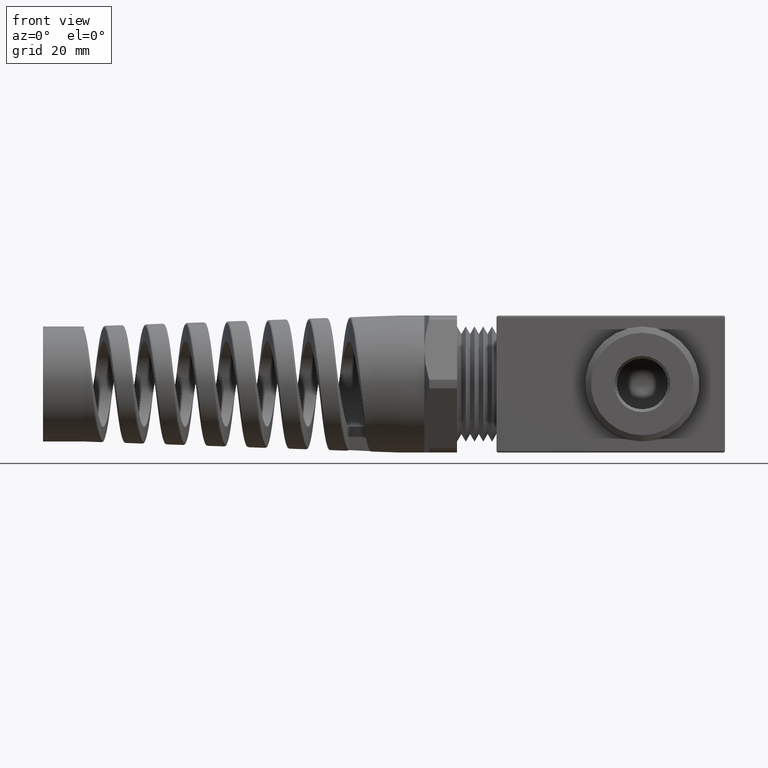
[diagram: clean part render]
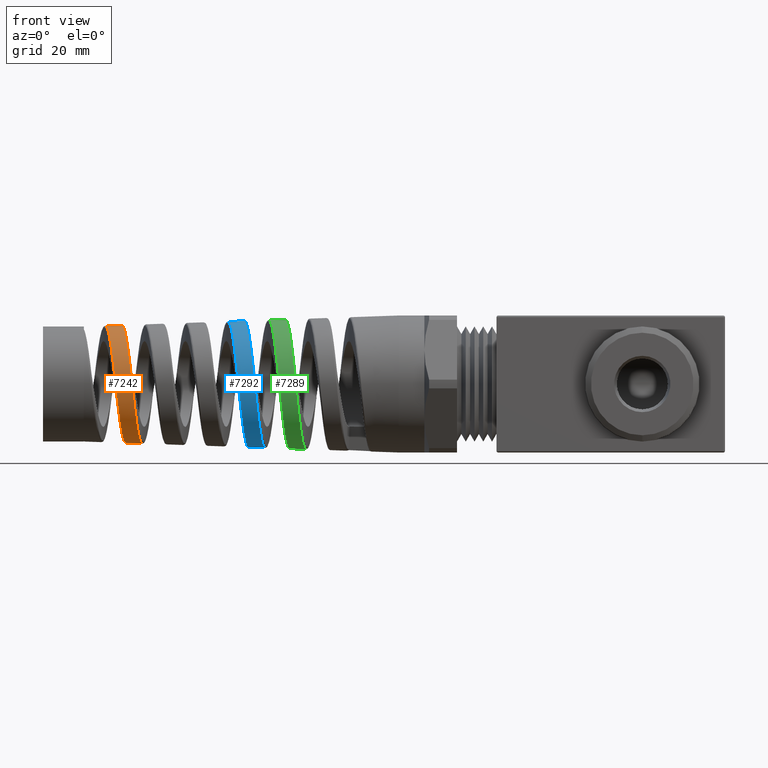
[diagram: same view with three faces highlighted in distinct colors, each labeled with its STEP entity id]
A machine part, front view with three faces highlighted in distinct colors.
Their STEP definitions:

[orange] entity #7242 — the highlighted conical surface has half-angle 2 deg.
#1359 = CARTESIAN_POINT ( 'NONE',  ( -2.430514158682816300, -4.644557431434576900E-013, -0.4085913324166747200 ) ) ;
#1664 = DIRECTION ( 'NONE',  ( 0.9993908270190959800, 0.0000000000000000000, -0.03489949670249403700 ) ) ;
#1665 = VECTOR ( 'NONE', #1664, 39.37007874015748100 ) ;
#1666 = CARTESIAN_POINT ( 'NONE',  ( -0.6720000000000001500, 0.0000000000000000000, -0.4699999999999998600 ) ) ;
#1667 = LINE ( 'NONE', #1666, #1665 ) ;
#6064 = CARTESIAN_POINT ( 'NONE',  ( -2.570915811315233100, -3.179248415142284500E-015, 0.4036883986688386500 ) ) ;
#6175 = CARTESIAN_POINT ( 'NONE',  ( -2.550322380640646100, -0.1801872109745417400, 0.3630237513487125100 ) ) ;
#6177 = CARTESIAN_POINT ( 'NONE',  ( -2.547413742908277700, -0.2035352142539029700, 0.3505795917643285700 ) ) ;
#6178 = CARTESIAN_POINT ( 'NONE',  ( -2.543012366372506200, -0.2366812698372448300, 0.3284969080969786200 ) ) ;
#6205 = DIRECTION ( 'NONE',  ( 0.0000000000000000000, 0.0000000000000000000, -1.000000000000000000 ) ) ;
#6206 = DIRECTION ( 'NONE',  ( 1.000000000000000000, 0.0000000000000000000, 0.0000000000000000000 ) ) ;
#6207 = CARTESIAN_POINT ( 'NONE',  ( -0.6720000000000001500, 0.0000000000000000000, 0.0000000000000000000 ) ) ;
#6208 = AXIS2_PLACEMENT_3D ( 'NONE', #6207, #6206, #6205 ) ;
#6209 = CONICAL_SURFACE ( 'NONE', #6208, 0.4699999999999998600, 0.03490658503987965200 ) ;
#6210 = FACE_OUTER_BOUND ( 'NONE', #7241, .T. ) ;
#6433 = CARTESIAN_POINT ( 'NONE',  ( -2.553630168962813100, -0.09131479268986740500, -0.3940676415320852300 ) ) ;
#6434 = CARTESIAN_POINT ( 'NONE',  ( -2.555095575855478100, -0.1041885840191225200, -0.3908047987045700800 ) ) ;
#6435 = CARTESIAN_POINT ( 'NONE',  ( -2.558002473059697700, -0.1293423923486833600, -0.3831085195077161300 ) ) ;
#6436 = CARTESIAN_POINT ( 'NONE',  ( -2.560897959142220500, -0.1540140281587494300, -0.3742201888238967900 ) ) ;
#6437 = CARTESIAN_POINT ( 'NONE',  ( -2.563798685872476800, -0.1777290875148218600, -0.3629752029142497300 ) ) ;
#6438 = CARTESIAN_POINT ( 'NONE',  ( -2.566715465491639800, -0.2009563116802702300, -0.3505323247531204100 ) ) ;
#6439 = CARTESIAN_POINT ( 'NONE',  ( -2.568190040261245900, -0.2123858290266794100, -0.3436687151675654200 ) ) ;
#6440 = CARTESIAN_POINT ( 'NONE',  ( -2.572580880245576300, -0.2453357017690604400, -0.3216002896141194100 ) ) ;
#6441 = CARTESIAN_POINT ( 'NONE',  ( -2.575469602542516300, -0.2655855368130044000, -0.3049416236418676100 ) ) ;
#6442 = CARTESIAN_POINT ( 'NONE',  ( -2.581282871862514500, -0.3027119362248537600, -0.2678185207313955600 ) ) ;
#6443 = CARTESIAN_POINT ( 'NONE',  ( -2.584235227686716200, -0.3197108427953407300, -0.2471136044207756800 ) ) ;
#6444 = CARTESIAN_POINT ( 'NONE',  ( -2.590062059259710100, -0.3489221280026593700, -0.2033948200000598700 ) ) ;
#6445 = CARTESIAN_POINT ( 'NONE',  ( -2.592955316130990200, -0.3612946345843366900, -0.1802917457773578200 ) ) ;
#6446 = CARTESIAN_POINT ( 'NONE',  ( -2.597345790247578300, -0.3764659855057668200, -0.1437609599942474600 ) ) ;
#6447 = CARTESIAN_POINT ( 'NONE',  ( -2.598824943060604700, -0.3809705807050424200, -0.1312029624607585200 ) ) ;
#6448 = CARTESIAN_POINT ( 'NONE',  ( -2.601755971276297000, -0.3886501072170210900, -0.1059314250629299500 ) ) ;
#6449 = CARTESIAN_POINT ( 'NONE',  ( -2.603212786343255900, -0.3918459941633135600, -0.09318536038715280500 ) ) ;
#6450 = CARTESIAN_POINT ( 'NONE',  ( -2.607577215053398700, -0.3995441214744403500, -0.05462569676285827100 ) ) ;
#6451 = CARTESIAN_POINT ( 'NONE',  ( -2.610478116083289300, -0.4021751077861183100, -0.02849365279849502100 ) ) ;
#6452 = CARTESIAN_POINT ( 'NONE',  ( -2.616379157324229400, -0.4022233184127659800, 0.02464435635406558500 ) ) ;
#6453 = CARTESIAN_POINT ( 'NONE',  ( -2.619287070868525600, -0.3996357977691669700, 0.05080931572176396200 ) ) ;
#6454 = CARTESIAN_POINT ( 'NONE',  ( -2.623660445699380200, -0.3920003232621153100, 0.08937623424069557300 ) ) ;
#6455 = CARTESIAN_POINT ( 'NONE',  ( -2.625120516252281300, -0.3888248853294024000, 0.1021228176437093800 ) ) ;
#6456 = CARTESIAN_POINT ( 'NONE',  ( -2.628057909613233300, -0.3811860399638478100, 0.1273917014873326100 ) ) ;
#6457 = CARTESIAN_POINT ( 'NONE',  ( -2.629540423146624000, -0.3766979440349729800, 0.1399582350137715500 ) ) ;
#6458 = CARTESIAN_POINT ( 'NONE',  ( -2.633943666669931200, -0.3615626809038248700, 0.1765236863286806500 ) ) ;
#6459 = CARTESIAN_POINT ( 'NONE',  ( -2.636845792623405700, -0.3492079320502491400, 0.1996381082187326500 ) ) ;
#6460 = CARTESIAN_POINT ( 'NONE',  ( -2.642696252191023100, -0.3200230276279901200, 0.2433574514799884400 ) ) ;
#6461 = CARTESIAN_POINT ( 'NONE',  ( -2.645665472546304900, -0.3030222094237932700, 0.2640652129158442300 ) ) ;
#6462 = CARTESIAN_POINT ( 'NONE',  ( -2.651518430578727600, -0.2658684806217358500, 0.3011692818440907500 ) ) ;
#6463 = CARTESIAN_POINT ( 'NONE',  ( -2.654430072137248200, -0.2455998574835707400, 0.3178013432860128900 ) ) ;
#6464 = CARTESIAN_POINT ( 'NONE',  ( -2.658852128152017400, -0.2126115044351324900, 0.3398021470236202200 ) ) ;
#6465 = CARTESIAN_POINT ( 'NONE',  ( -2.660337658658554500, -0.2011649710071019000, 0.3466397685487002700 ) ) ;
#6466 = CARTESIAN_POINT ( 'NONE',  ( -2.663277010188053000, -0.1779036929094154900, 0.3590188429808330900 ) ) ;
#6467 = CARTESIAN_POINT ( 'NONE',  ( -2.666201135524515200, -0.1541539910477421100, 0.3701885631821231200 ) ) ;
#6468 = CARTESIAN_POINT ( 'NONE',  ( -2.669123486788596500, -0.1294461499507137100, 0.3789774586531822800 ) ) ;
#6469 = CARTESIAN_POINT ( 'NONE',  ( -2.672059569763686000, -0.1042548262972510900, 0.3865605829577066200 ) ) ;
#6470 = CARTESIAN_POINT ( 'NONE',  ( -2.673541428326810200, -0.09135611326163235700, 0.3897605426730528200 ) ) ;
#6471 = CARTESIAN_POINT ( 'NONE',  ( -2.677980542331591900, -0.05235229602696302900, 0.3973926807049404400 ) ) ;
#6472 = CARTESIAN_POINT ( 'NONE',  ( -2.680900140616064900, -0.02623091163353539000, 0.3998476612576960000 ) ) ;
#6473 = CARTESIAN_POINT ( 'NONE',  ( -2.683833513271471000, 1.148867089074180500E-012, 0.3997452256272877600 ) ) ;
#6474 = B_SPLINE_CURVE_WITH_KNOTS ( 'NONE', 3,
 ( #6473, #6472, #6471, #6470, #6469, #6468, #6467, #6466, #6465, #6464, #6463, #6462, #6461, #6460, #6459, #6458, #6457, #6456, #6455, #6454, #6453, #6452, #6451, #6450, #6449, #6448, #6447, #6446, #6445, #6444, #6443, #6442, #6441, #6440, #6439, #6438, #6437, #6436, #6435, #6434, #6433, #6518, #6517, #6516 ),
 .UNSPECIFIED., .F., .F.,
 ( 4, 2, 2, 1, 2, 2, 2, 2, 2, 2, 2, 2, 2, 2, 2, 2, 2, 2, 2, 1, 2, 2, 4 ),
 ( 0.03372771576105604300, 0.03576203711556601900, 0.03677919779282099600, 0.03779635847007598000, 0.03881351914733096500, 0.03983067982458594900, 0.04186500117909591800, 0.04389932253360588600, 0.04593364388811586200, 0.04695080456537084600, 0.04796796524262583700, 0.05000228659713580600, 0.05203660795164577500, 0.05305376862890076600, 0.05407092930615575000, 0.05610525066066573300, 0.05813957201517570800, 0.06017389336968569100, 0.06119105404694067500, 0.06220821472419566000, 0.06322537540145065100, 0.06424253607870564200, 0.06627685743321561100 ),
 .UNSPECIFIED. ) ;
#6475 = CARTESIAN_POINT ( 'NONE',  ( -2.541532831267908400, -0.2474576054104047100, 0.3205270978571891400 ) ) ;
#6476 = CARTESIAN_POINT ( 'NONE',  ( -2.538575686064157300, -0.2681565191077241500, 0.3035598214138147100 ) ) ;
#6477 = CARTESIAN_POINT ( 'NONE',  ( -2.537109099177821600, -0.2780081341950768100, 0.2946282743627482400 ) ) ;
#6478 = CARTESIAN_POINT ( 'NONE',  ( -2.532722975974611500, -0.3061131808196913600, 0.2665324136784587000 ) ) ;
#6479 = CARTESIAN_POINT ( 'NONE',  ( -2.529816631277554500, -0.3229304170412677900, 0.2460791370551844400 ) ) ;
#6480 = CARTESIAN_POINT ( 'NONE',  ( -2.525398938252671600, -0.3451993597575702700, 0.2127581438894818600 ) ) ;
#6481 = CARTESIAN_POINT ( 'NONE',  ( -2.523919143295628900, -0.3521048976864388200, 0.2012233537470109500 ) ) ;
#6482 = CARTESIAN_POINT ( 'NONE',  ( -2.520989645038222100, -0.3646211075212367800, 0.1777725686972949100 ) ) ;
#6483 = CARTESIAN_POINT ( 'NONE',  ( -2.518074073473853600, -0.3759267383870673600, 0.1538202413897748500 ) ) ;
#6484 = CARTESIAN_POINT ( 'NONE',  ( -2.515157876024449700, -0.3848455380536912600, 0.1288824162082798900 ) ) ;
#6485 = CARTESIAN_POINT ( 'NONE',  ( -2.512227948789068400, -0.3925539630406828500, 0.1034464469450902400 ) ) ;
#6486 = CARTESIAN_POINT ( 'NONE',  ( -2.510748179075818600, -0.3958156169567484400, 0.09040821163031428900 ) ) ;
#6487 = CARTESIAN_POINT ( 'NONE',  ( -2.506332426340487400, -0.4036019569122805100, 0.05108687246974628200 ) ) ;
#6488 = CARTESIAN_POINT ( 'NONE',  ( -2.503432412070525800, -0.4061560767863591200, 0.02472916392387210900 ) ) ;
#6489 = CARTESIAN_POINT ( 'NONE',  ( -2.499061834463426600, -0.4061363087181927800, -0.01500758989449810900 ) ) ;
#6490 = CARTESIAN_POINT ( 'NONE',  ( -2.497601747846697400, -0.4054833414405621900, -0.02828680105041603600 ) ) ;
#6491 = CARTESIAN_POINT ( 'NONE',  ( -2.494660133674341000, -0.4028460445159972600, -0.05491284699720707500 ) ) ;
#6492 = CARTESIAN_POINT ( 'NONE',  ( -2.493187479035510600, -0.4008631879580584800, -0.06817787822273528600 ) ) ;
#6493 = CARTESIAN_POINT ( 'NONE',  ( -2.488807633618687300, -0.3930544433079774500, -0.1072430763142517700 ) ) ;
#6494 = CARTESIAN_POINT ( 'NONE',  ( -2.485911771086560600, -0.3853647090278199400, -0.1325574532536387100 ) ) ;
#6495 = CARTESIAN_POINT ( 'NONE',  ( -2.481524444911155800, -0.3700910452693080300, -0.1694223294765210000 ) ) ;
#6496 = CARTESIAN_POINT ( 'NONE',  ( -2.480047076756717800, -0.3643346650911733500, -0.1815894381582415800 ) ) ;
#6497 = CARTESIAN_POINT ( 'NONE',  ( -2.477115542621009400, -0.3517415776056513300, -0.2051234928230548400 ) ) ;
#6498 = CARTESIAN_POINT ( 'NONE',  ( -2.475659730870754900, -0.3449087614902560100, -0.2165044815332211600 ) ) ;
#6499 = CARTESIAN_POINT ( 'NONE',  ( -2.471301509800351700, -0.3228426260301421900, -0.2495162340738093800 ) ) ;
#6500 = CARTESIAN_POINT ( 'NONE',  ( -2.468408853876630900, -0.3060564525069937000, -0.2700265726905304300 ) ) ;
#6501 = CARTESIAN_POINT ( 'NONE',  ( -2.462533082352333000, -0.2681935550874801600, -0.3079355337735666400 ) ) ;
#6502 = CARTESIAN_POINT ( 'NONE',  ( -2.459626568213432400, -0.2476058633929421900, -0.3248206728906906600 ) ) ;
#6503 = CARTESIAN_POINT ( 'NONE',  ( -2.455273054373479100, -0.2146360145722235600, -0.3469113260438329600 ) ) ;
#6504 = CARTESIAN_POINT ( 'NONE',  ( -2.453820805641644000, -0.2032801601580871400, -0.3537468324050748700 ) ) ;
#6505 = CARTESIAN_POINT ( 'NONE',  ( -2.450902048101013500, -0.1798241773611951600, -0.3663414339377246100 ) ) ;
#6506 = CARTESIAN_POINT ( 'NONE',  ( -2.449428283895288300, -0.1676590397845680300, -0.3721233723699419200 ) ) ;
#6507 = CARTESIAN_POINT ( 'NONE',  ( -2.445046822882117200, -0.1307292681328098600, -0.3874963756280809200 ) ) ;
#6508 = CARTESIAN_POINT ( 'NONE',  ( -2.442164035011131300, -0.1054162231731739600, -0.3952278081930375400 ) ) ;
#6509 = CARTESIAN_POINT ( 'NONE',  ( -2.436362426714424200, -0.05344023864916264800, -0.4057427461146054200 ) ) ;
#6510 = CARTESIAN_POINT ( 'NONE',  ( -2.433417181641242900, -0.02652941790612861300, -0.4084899566210840600 ) ) ;
#6511 = CARTESIAN_POINT ( 'NONE',  ( -2.430514158682816300, -4.644557431434576900E-013, -0.4085913324166747200 ) ) ;
#6513 = B_SPLINE_CURVE_WITH_KNOTS ( 'NONE', 3,
 ( #6511, #6510, #6509, #6508, #6507, #6506, #6505, #6504, #6503, #6502, #6501, #6500, #6499, #6498, #6497, #6496, #6495, #6494, #6493, #6492, #6491, #6490, #6489, #6488, #6487, #6486, #6485, #6484, #6483, #6482, #6481, #6480, #6479, #6478, #6477, #6476, #6475, #6178, #6177, #6175, #12655, #12656, #12710, #12630, #12631, #12625, #12626 ),
 .UNSPECIFIED., .F., .F.,
 ( 4, 2, 2, 2, 2, 2, 2, 2, 2, 2, 2, 2, 2, 2, 1, 2, 2, 2, 2, 2, 2, 2, 2, 4 ),
 ( 0.3519305577512262300, 0.3539835214875263200, 0.3560364852238264200, 0.3570629670919764400, 0.3580894489601264600, 0.3601424126964265500, 0.3621953764327266500, 0.3632218583008766700, 0.3642483401690267400, 0.3663013039053268400, 0.3673277857734768600, 0.3683542676416268800, 0.3704072313779269700, 0.3714337132460770500, 0.3724601951142270700, 0.3734866769823771400, 0.3745131588505271600, 0.3765661225868272600, 0.3775926044549773300, 0.3786190863231273500, 0.3806720500594274500, 0.3816985319275775200, 0.3827250137957275400, 0.3847779775320276400 ),
 .UNSPECIFIED. ) ;
#6516 = CARTESIAN_POINT ( 'NONE',  ( -2.543457390768088600, -4.936352888661480000E-014, -0.4046472678433727400 ) ) ;
#6517 = CARTESIAN_POINT ( 'NONE',  ( -2.546353536090045100, -0.02622639217374914500, -0.4045461322201668900 ) ) ;
#6518 = CARTESIAN_POINT ( 'NONE',  ( -2.549238230246826800, -0.05233711440734226800, -0.4019197979248772500 ) ) ;
#7113 = VERTEX_POINT ( 'NONE', #1359 ) ;
#7173 = EDGE_CURVE ( 'NONE', #7277, #7113, #1667, .T. ) ;
#7229 = VERTEX_POINT ( 'NONE', #6064 ) ;
#7241 = EDGE_LOOP ( 'NONE', ( #7266, #7267, #7264, #7270 ) ) ;
#7242 = ADVANCED_FACE ( 'NONE', ( #6210 ), #6209, .T. ) ;
#7264 = ORIENTED_EDGE ( 'NONE', *, *, #7173, .T. ) ;
#7266 = ORIENTED_EDGE ( 'NONE', *, *, #7285, .F. ) ;
#7267 = ORIENTED_EDGE ( 'NONE', *, *, #7268, .T. ) ;
#7268 = EDGE_CURVE ( 'NONE', #7280, #7277, #6474, .T. ) ;
#7269 = EDGE_CURVE ( 'NONE', #7113, #7229, #6513, .T. ) ;
#7270 = ORIENTED_EDGE ( 'NONE', *, *, #7269, .T. ) ;
#7277 = VERTEX_POINT ( 'NONE', #8243 ) ;
#7280 = VERTEX_POINT ( 'NONE', #8236 ) ;
#7285 = EDGE_CURVE ( 'NONE', #7280, #7229, #8261, .T. ) ;
#8236 = CARTESIAN_POINT ( 'NONE',  ( -2.683833513271471000, 1.148867089074180500E-012, 0.3997452256272877600 ) ) ;
#8243 = CARTESIAN_POINT ( 'NONE',  ( -2.543457390768088600, -4.936352888661480000E-014, -0.4046472678433727400 ) ) ;
#8258 = DIRECTION ( 'NONE',  ( 0.9993908270190959800, 4.273955692856292900E-018, 0.03489949670249403700 ) ) ;
#8259 = VECTOR ( 'NONE', #8258, 39.37007874015748100 ) ;
#8260 = CARTESIAN_POINT ( 'NONE',  ( -0.6720000000000001500, 5.755839955992558400E-017, 0.4699999999999998600 ) ) ;
#8261 = LINE ( 'NONE', #8260, #8259 ) ;
#12625 = CARTESIAN_POINT ( 'NONE',  ( -2.567944963646700000, -0.02681664934277953900, 0.4037921429554665000 ) ) ;
#12626 = CARTESIAN_POINT ( 'NONE',  ( -2.570915811315233100, -3.179248415142284500E-015, 0.4036883986688386500 ) ) ;
#12630 = CARTESIAN_POINT ( 'NONE',  ( -2.560632930560489100, -0.09216631711686997000, 0.3936176576817424500 ) ) ;
#12631 = CARTESIAN_POINT ( 'NONE',  ( -2.565024182081027300, -0.05320628489264596400, 0.4012481135919907000 ) ) ;
#12655 = CARTESIAN_POINT ( 'NONE',  ( -2.554732773160818500, -0.1432834356294449600, 0.3782430733317483900 ) ) ;
#12656 = CARTESIAN_POINT ( 'NONE',  ( -2.556218928507924200, -0.1305956860764538000, 0.3827553089270600600 ) ) ;
#12710 = CARTESIAN_POINT ( 'NONE',  ( -2.559167521525929500, -0.1050481612911566400, 0.3904337526097111400 ) ) ;

[blue] entity #7292 — the highlighted conical surface has half-angle 2 deg.
#1278 = CARTESIAN_POINT ( 'NONE',  ( -1.841561912663937100, 6.841017039087616400E-014, 0.4291579980415429800 ) ) ;
#1283 = CARTESIAN_POINT ( 'NONE',  ( -1.588092709410913600, 5.378720768999652000E-013, -0.4380093376615970500 ) ) ;
#1292 = DIRECTION ( 'NONE',  ( 0.9993908270190959800, 0.0000000000000000000, -0.03489949670249403700 ) ) ;
#1294 = VECTOR ( 'NONE', #1292, 39.37007874015748100 ) ;
#1295 = CARTESIAN_POINT ( 'NONE',  ( -0.6720000000000001500, 0.0000000000000000000, -0.4699999999999998600 ) ) ;
#1296 = LINE ( 'NONE', #1295, #1294 ) ;
#1523 = CARTESIAN_POINT ( 'NONE',  ( -1.701181390279759200, 1.537446131535684400E-014, -0.4340601939048510700 ) ) ;
#1677 = DIRECTION ( 'NONE',  ( 0.9993908270190959800, 4.273955692856292900E-018, 0.03489949670249403700 ) ) ;
#1678 = VECTOR ( 'NONE', #1677, 39.37007874015748100 ) ;
#1679 = CARTESIAN_POINT ( 'NONE',  ( -0.6720000000000001500, 5.755839955992558400E-017, 0.4699999999999998600 ) ) ;
#1680 = LINE ( 'NONE', #1679, #1678 ) ;
#5876 = CARTESIAN_POINT ( 'NONE',  ( -1.728496292560490500, 6.489728726191558100E-016, 0.4331063364986161800 ) ) ;
#7096 = VERTEX_POINT ( 'NONE', #1283 ) ;
#7099 = VERTEX_POINT ( 'NONE', #1278 ) ;
#7107 = EDGE_CURVE ( 'NONE', #7166, #7096, #1296, .T. ) ;
#7166 = VERTEX_POINT ( 'NONE', #1523 ) ;
#7180 = EDGE_CURVE ( 'NONE', #7099, #7203, #1680, .T. ) ;
#7203 = VERTEX_POINT ( 'NONE', #5876 ) ;
#7286 = EDGE_CURVE ( 'NONE', #7099, #7166, #8256, .T. ) ;
#7287 = ORIENTED_EDGE ( 'NONE', *, *, #7107, .T. ) ;
#7288 = ORIENTED_EDGE ( 'NONE', *, *, #7291, .T. ) ;
#7291 = EDGE_CURVE ( 'NONE', #7096, #7203, #8372, .T. ) ;
#7292 = ADVANCED_FACE ( 'NONE', ( #8373 ), #8402, .T. ) ;
#7294 = EDGE_LOOP ( 'NONE', ( #7305, #7306, #7287, #7288 ) ) ;
#7305 = ORIENTED_EDGE ( 'NONE', *, *, #7180, .F. ) ;
#7306 = ORIENTED_EDGE ( 'NONE', *, *, #7286, .T. ) ;
#8251 = CARTESIAN_POINT ( 'NONE',  ( -1.834173036148997400, -0.07075670660705833700, 0.4237799771779977000 ) ) ;
#8252 = CARTESIAN_POINT ( 'NONE',  ( -1.835639224060607000, -0.05679385894752526900, 0.4258286824240877200 ) ) ;
#8253 = CARTESIAN_POINT ( 'NONE',  ( -1.838592442112284800, -0.02853695656774338200, 0.4285471996270462900 ) ) ;
#8254 = CARTESIAN_POINT ( 'NONE',  ( -1.840080810731172100, -0.01422985886500099400, 0.4292097192607331500 ) ) ;
#8255 = CARTESIAN_POINT ( 'NONE',  ( -1.841561912663937100, 6.841017039087616400E-014, 0.4291579980415429800 ) ) ;
#8256 = B_SPLINE_CURVE_WITH_KNOTS ( 'NONE', 3,
 ( #8255, #8254, #8253, #8252, #8251, #8334, #8333, #8332, #8331, #8330, #8329, #8328, #8327, #8326, #8325, #8324, #8323, #8322, #8321, #8320, #8319, #8318, #8317, #8316, #8315, #8314, #8313, #8312, #8311, #8310, #8309, #8308, #8307, #8306, #8305, #8304, #8303, #8302, #8301, #8300, #8299, #8298, #8297, #8296, #8295, #8294, #8293, #8292, #8291 ),
 .UNSPECIFIED., .F., .F.,
 ( 4, 2, 2, 2, 2, 1, 2, 2, 2, 2, 2, 2, 2, 2, 2, 2, 2, 2, 2, 2, 2, 2, 2, 2, 4 ),
 ( 0.2349370397999832000, 0.2360280126698850500, 0.2371189855397869100, 0.2393009312795906000, 0.2403919041494924400, 0.2414828770193943000, 0.2425738498892961400, 0.2436648227591979900, 0.2458467684990016700, 0.2480287142388053500, 0.2502106599786090300, 0.2513016328485109300, 0.2523926057184127700, 0.2545745514582164500, 0.2567564971980201300, 0.2578474700679219700, 0.2589384429378238100, 0.2611203886776274900, 0.2622113615475293300, 0.2633023344174311700, 0.2654842801572349100, 0.2665752530271367500, 0.2676662258970385900, 0.2687571987669404300, 0.2698481716368422700 ),
 .UNSPECIFIED. ) ;
#8291 = CARTESIAN_POINT ( 'NONE',  ( -1.701181390279759200, 1.537446131535684400E-014, -0.4340601939048510700 ) ) ;
#8292 = CARTESIAN_POINT ( 'NONE',  ( -1.702644112074749300, -0.01420979355368818200, -0.4340091145342182500 ) ) ;
#8293 = CARTESIAN_POINT ( 'NONE',  ( -1.704110953029998900, -0.02844996807434156700, -0.4332542253267711000 ) ) ;
#8294 = CARTESIAN_POINT ( 'NONE',  ( -1.707019070579340700, -0.05653010050608105200, -0.4303891755557874800 ) ) ;
#8295 = CARTESIAN_POINT ( 'NONE',  ( -1.708467330347169400, -0.07043814989449204100, -0.4282796158826096000 ) ) ;
#8296 = CARTESIAN_POINT ( 'NONE',  ( -1.711364733536663100, -0.09799214312385597100, -0.4227229919480712300 ) ) ;
#8297 = CARTESIAN_POINT ( 'NONE',  ( -1.712813379440780900, -0.1116381423913349900, -0.4192759426667188000 ) ) ;
#8298 = CARTESIAN_POINT ( 'NONE',  ( -1.715725316373403400, -0.1386624117519073800, -0.4110230441560467900 ) ) ;
#8299 = CARTESIAN_POINT ( 'NONE',  ( -1.717196818389192400, -0.1521131111328630500, -0.4061845896642241000 ) ) ;
#8300 = CARTESIAN_POINT ( 'NONE',  ( -1.721583276457384000, -0.1914027668722319000, -0.3898208893996108500 ) ) ;
#8301 = CARTESIAN_POINT ( 'NONE',  ( -1.724468527878075100, -0.2161856841232257000, -0.3765094446776247600 ) ) ;
#8302 = CARTESIAN_POINT ( 'NONE',  ( -1.728823773638256300, -0.2512842977106087300, -0.3530234542408863300 ) ) ;
#8303 = CARTESIAN_POINT ( 'NONE',  ( -1.730280035489447600, -0.2626354659091220100, -0.3446042196776064000 ) ) ;
#8304 = CARTESIAN_POINT ( 'NONE',  ( -1.733216268685799700, -0.2846176229745928700, -0.3265478075005546800 ) ) ;
#8305 = CARTESIAN_POINT ( 'NONE',  ( -1.734684305625505500, -0.2951549462667155100, -0.3169802254648714200 ) ) ;
#8306 = CARTESIAN_POINT ( 'NONE',  ( -1.739055353414006300, -0.3250594253606847200, -0.2870434927512008900 ) ) ;
#8307 = CARTESIAN_POINT ( 'NONE',  ( -1.741945503069912200, -0.3428999138496040000, -0.2653182116610758300 ) ) ;
#8308 = CARTESIAN_POINT ( 'NONE',  ( -1.746327082708033100, -0.3664864337672291100, -0.2300646039331091000 ) ) ;
#8309 = CARTESIAN_POINT ( 'NONE',  ( -1.747803319054173500, -0.3738490343762106400, -0.2177964925222865800 ) ) ;
#8310 = CARTESIAN_POINT ( 'NONE',  ( -1.750731568438960200, -0.3872179999844266300, -0.1928009476675596500 ) ) ;
#8311 = CARTESIAN_POINT ( 'NONE',  ( -1.752186468215523900, -0.3932469813530633500, -0.1800547669940109900 ) ) ;
#8312 = CARTESIAN_POINT ( 'NONE',  ( -1.756545496468120600, -0.4094118379373482600, -0.1410902057726827800 ) ) ;
#8313 = CARTESIAN_POINT ( 'NONE',  ( -1.759443732269351500, -0.4176441201044491800, -0.1141527611773698900 ) ) ;
#8314 = CARTESIAN_POINT ( 'NONE',  ( -1.765339803648906700, -0.4288143838713694400, -0.05829087737140163000 ) ) ;
#8315 = CARTESIAN_POINT ( 'NONE',  ( -1.768251265675089100, -0.4315784043889401800, -0.03018229527921595700 ) ) ;
#8316 = CARTESIAN_POINT ( 'NONE',  ( -1.772617237797215600, -0.4316279967913190800, 0.01198915971067074700 ) ) ;
#8317 = CARTESIAN_POINT ( 'NONE',  ( -1.774074185992559700, -0.4309594733917491700, 0.02606123887140257900 ) ) ;
#8318 = CARTESIAN_POINT ( 'NONE',  ( -1.777004963103246100, -0.4282237295716515000, 0.05423446360485376100 ) ) ;
#8319 = CARTESIAN_POINT ( 'NONE',  ( -1.778485309218612400, -0.4261389120112483700, 0.06839652613781092800 ) ) ;
#8320 = CARTESIAN_POINT ( 'NONE',  ( -1.782883244161572300, -0.4178857085589426400, 0.1100580651535573600 ) ) ;
#8321 = CARTESIAN_POINT ( 'NONE',  ( -1.785781620847448400, -0.4097391555462271400, 0.1369691386260972800 ) ) ;
#8322 = CARTESIAN_POINT ( 'NONE',  ( -1.791626738169264500, -0.3882283739201419200, 0.1890753835268072200 ) ) ;
#8323 = CARTESIAN_POINT ( 'NONE',  ( -1.794596536370698400, -0.3746977995052160300, 0.2144343825307675800 ) ) ;
#8324 = CARTESIAN_POINT ( 'NONE',  ( -1.800443758841251000, -0.3434119407039841800, 0.2612908286769734500 ) ) ;
#8325 = CARTESIAN_POINT ( 'NONE',  ( -1.803347702722432100, -0.3255930954241457200, 0.2830480151973149800 ) ) ;
#8326 = CARTESIAN_POINT ( 'NONE',  ( -1.807759860732106800, -0.2955441974868410200, 0.3131223055031209200 ) ) ;
#8327 = CARTESIAN_POINT ( 'NONE',  ( -1.809243155391052800, -0.2849409437219953500, 0.3227307476018538800 ) ) ;
#8328 = CARTESIAN_POINT ( 'NONE',  ( -1.812178817544600500, -0.2630736205449628100, 0.3406619077310827900 ) ) ;
#8329 = CARTESIAN_POINT ( 'NONE',  ( -1.815099381809438300, -0.2404425827538976800, 0.3574208175820389200 ) ) ;
#8330 = CARTESIAN_POINT ( 'NONE',  ( -1.818019088529181100, -0.2163131579766342000, 0.3718742939658042900 ) ) ;
#8331 = CARTESIAN_POINT ( 'NONE',  ( -1.820952340603758900, -0.1914274320555456900, 0.3851614396907964100 ) ) ;
#8332 = CARTESIAN_POINT ( 'NONE',  ( -1.822431673270428900, -0.1785534789218999900, 0.3912432745792096500 ) ) ;
#8333 = CARTESIAN_POINT ( 'NONE',  ( -1.826869993670167600, -0.1391188729067899300, 0.4075193605569084100 ) ) ;
#8334 = CARTESIAN_POINT ( 'NONE',  ( -1.829783408204705300, -0.1121596378978960400, 0.4156217606776908000 ) ) ;
#8335 = CARTESIAN_POINT ( 'NONE',  ( -1.703502866350349300, -0.2303624107153612900, 0.3680683294387387400 ) ) ;
#8336 = CARTESIAN_POINT ( 'NONE',  ( -1.699100119797324100, -0.2659384595453337900, 0.3443270267778453200 ) ) ;
#8337 = CARTESIAN_POINT ( 'NONE',  ( -1.696195509476245300, -0.2878838382687924400, 0.3263359218202439000 ) ) ;
#8338 = CARTESIAN_POINT ( 'NONE',  ( -1.691796985386851500, -0.3181398987928470400, 0.2961132521828376800 ) ) ;
#8339 = CARTESIAN_POINT ( 'NONE',  ( -1.690315829708939100, -0.3278267162539137400, 0.2854344364263184900 ) ) ;
#8340 = CARTESIAN_POINT ( 'NONE',  ( -1.687367242087446200, -0.3460050863788525800, 0.2632738688811646100 ) ) ;
#8341 = CARTESIAN_POINT ( 'NONE',  ( -1.685902988699076800, -0.3544838044892056900, 0.2518225895377605400 ) ) ;
#8342 = CARTESIAN_POINT ( 'NONE',  ( -1.681519356481632900, -0.3781372831006479300, 0.2163878157318064300 ) ) ;
#8343 = CARTESIAN_POINT ( 'NONE',  ( -1.678610912184730600, -0.3915464063140199300, 0.1913334880427575700 ) ) ;
#8344 = CARTESIAN_POINT ( 'NONE',  ( -1.674187151363305300, -0.4080044045249186500, 0.1515449922940504700 ) ) ;
#8345 = CARTESIAN_POINT ( 'NONE',  ( -1.672711971565763700, -0.4128334031426187900, 0.1379989758745423200 ) ) ;
#8346 = CARTESIAN_POINT ( 'NONE',  ( -1.669787576939518700, -0.4210727902529471900, 0.1107326021136305600 ) ) ;
#8347 = CARTESIAN_POINT ( 'NONE',  ( -1.666876532697572300, -0.4279415194525773000, 0.08317866981792813900 ) ) ;
#8348 = CARTESIAN_POINT ( 'NONE',  ( -1.663963255881072200, -0.4320999482530167900, 0.05505914403339316100 ) ) ;
#8349 = CARTESIAN_POINT ( 'NONE',  ( -1.661034253585972300, -0.4348799101349208300, 0.02665349294479566300 ) ) ;
#8350 = CARTESIAN_POINT ( 'NONE',  ( -1.659553792975186700, -0.4355772931154848200, 0.01222852141637867200 ) ) ;
#8351 = CARTESIAN_POINT ( 'NONE',  ( -1.655146842097790800, -0.4355259634450351900, -0.03070332094575632300 ) ) ;
#8352 = CARTESIAN_POINT ( 'NONE',  ( -1.652245188139831200, -0.4326979440143100000, -0.05895456623279007200 ) ) ;
#8353 = CARTESIAN_POINT ( 'NONE',  ( -1.646414419844867400, -0.4215679543563745100, -0.1147218859813854700 ) ) ;
#8354 = CARTESIAN_POINT ( 'NONE',  ( -1.643455324272657300, -0.4131242745050203200, -0.1424805454144093800 ) ) ;
#8355 = CARTESIAN_POINT ( 'NONE',  ( -1.637626030724759400, -0.3912873582252898200, -0.1950491091800147500 ) ) ;
#8356 = CARTESIAN_POINT ( 'NONE',  ( -1.634734668394298900, -0.3779022835099483100, -0.2200775413605868000 ) ) ;
#8357 = CARTESIAN_POINT ( 'NONE',  ( -1.630346231522676200, -0.3540891330400082700, -0.2557082727628742800 ) ) ;
#8358 = CARTESIAN_POINT ( 'NONE',  ( -1.628868030536071700, -0.3454780789758350500, -0.2673126776199683000 ) ) ;
#8359 = CARTESIAN_POINT ( 'NONE',  ( -1.625939893337805100, -0.3273312738065673500, -0.2894040471077576900 ) ) ;
#8360 = CARTESIAN_POINT ( 'NONE',  ( -1.624484504618150200, -0.3177711134095881900, -0.2999390996694166800 ) ) ;
#8361 = CARTESIAN_POINT ( 'NONE',  ( -1.620125769997356400, -0.2876631510985567200, -0.3300440720304460600 ) ) ;
#8362 = CARTESIAN_POINT ( 'NONE',  ( -1.617229733442241400, -0.2656924294786426900, -0.3481344438123302700 ) ) ;
#8363 = CARTESIAN_POINT ( 'NONE',  ( -1.611347329421691600, -0.2178566098036646700, -0.3801422495086334000 ) ) ;
#8364 = CARTESIAN_POINT ( 'NONE',  ( -1.608456165064677600, -0.1927664804094773300, -0.3935436545087500600 ) ) ;
#8365 = CARTESIAN_POINT ( 'NONE',  ( -1.604106518908434000, -0.1534527413216463800, -0.4098979285966440300 ) ) ;
#8366 = CARTESIAN_POINT ( 'NONE',  ( -1.602654613768318000, -0.1400663531656627900, -0.4147201708230941500 ) ) ;
#8367 = CARTESIAN_POINT ( 'NONE',  ( -1.599732682423807600, -0.1127189375021175500, -0.4230781685035462900 ) ) ;
#8368 = CARTESIAN_POINT ( 'NONE',  ( -1.598257785439644700, -0.09870960820019275600, -0.4266166189982991700 ) ) ;
#8369 = CARTESIAN_POINT ( 'NONE',  ( -1.593879676840698000, -0.05670243892082552800, -0.4350585648589707100 ) ) ;
#8370 = CARTESIAN_POINT ( 'NONE',  ( -1.590996278311225900, -0.02846395047653309900, -0.4379079428013606900 ) ) ;
#8371 = CARTESIAN_POINT ( 'NONE',  ( -1.588092709410913600, 5.378720768999652000E-013, -0.4380093376615970500 ) ) ;
#8372 = B_SPLINE_CURVE_WITH_KNOTS ( 'NONE', 3,
 ( #8371, #8370, #8369, #8368, #8367, #8366, #8365, #8364, #8363, #8362, #8361, #8360, #8359, #8358, #8357, #8356, #8355, #8354, #8353, #8352, #8351, #8350, #8349, #8348, #8347, #8346, #8345, #8344, #8343, #8342, #8341, #8340, #8339, #8338, #8337, #8336, #8335, #8413, #8412, #8411, #8410, #8409, #8408, #8407, #8406, #8405, #8404 ),
 .UNSPECIFIED., .F., .F.,
 ( 4, 2, 2, 2, 2, 2, 2, 2, 2, 2, 2, 2, 1, 2, 2, 2, 2, 2, 2, 2, 2, 2, 2, 4 ),
 ( 0.1465185604270058700, 0.1487203717819474100, 0.1498212774594181700, 0.1509221831368889300, 0.1531239944918304800, 0.1553258058467720000, 0.1564267115242427800, 0.1575276172017135400, 0.1597294285566550600, 0.1619312399115966100, 0.1641330512665381300, 0.1652339569440088900, 0.1663348626214796500, 0.1674357682989504000, 0.1685366739764211900, 0.1707384853313627100, 0.1718393910088335000, 0.1729402966863042600, 0.1751421080412457800, 0.1762430137187165300, 0.1773439193961872900, 0.1795457307511288400, 0.1806466364285996000, 0.1817475421060703600 ),
 .UNSPECIFIED. ) ;
#8373 = FACE_OUTER_BOUND ( 'NONE', #7294, .T. ) ;
#8398 = DIRECTION ( 'NONE',  ( 0.0000000000000000000, 0.0000000000000000000, -1.000000000000000000 ) ) ;
#8399 = DIRECTION ( 'NONE',  ( 1.000000000000000000, 0.0000000000000000000, 0.0000000000000000000 ) ) ;
#8400 = CARTESIAN_POINT ( 'NONE',  ( -0.6720000000000001500, 0.0000000000000000000, 0.0000000000000000000 ) ) ;
#8401 = AXIS2_PLACEMENT_3D ( 'NONE', #8400, #8399, #8398 ) ;
#8402 = CONICAL_SURFACE ( 'NONE', #8401, 0.4699999999999998600, 0.03490658503987965200 ) ;
#8404 = CARTESIAN_POINT ( 'NONE',  ( -1.728496292560490500, 6.489728726191558100E-016, 0.4331063364986161800 ) ) ;
#8405 = CARTESIAN_POINT ( 'NONE',  ( -1.727032796396459100, -0.01418905300704679400, 0.4331574429108124800 ) ) ;
#8406 = CARTESIAN_POINT ( 'NONE',  ( -1.725570734797873500, -0.02837149844345053200, 0.4325128959702172500 ) ) ;
#8407 = CARTESIAN_POINT ( 'NONE',  ( -1.722634789190395500, -0.05672151454102395500, 0.4298184002838754100 ) ) ;
#8408 = CARTESIAN_POINT ( 'NONE',  ( -1.721155154733495300, -0.07094397495666351900, 0.4277573018433950000 ) ) ;
#8409 = CARTESIAN_POINT ( 'NONE',  ( -1.716714569260078500, -0.1132091835103063200, 0.4194590072834570900 ) ) ;
#8410 = CARTESIAN_POINT ( 'NONE',  ( -1.713797684887800300, -0.1404136998488989300, 0.4112378394929524500 ) ) ;
#8411 = CARTESIAN_POINT ( 'NONE',  ( -1.709404778173667600, -0.1798023246450979300, 0.3950086206959182400 ) ) ;
#8412 = CARTESIAN_POINT ( 'NONE',  ( -1.707937996720111200, -0.1926938316068336200, 0.3889445531282524900 ) ) ;
#8413 = CARTESIAN_POINT ( 'NONE',  ( -1.704986217113567700, -0.2179867062526144600, 0.3754730622850346900 ) ) ;

[green] entity #7289 — the highlighted conical surface has half-angle 2 deg.
#1276 = CARTESIAN_POINT ( 'NONE',  ( -1.420421649733054400, -2.636518376587341800E-014, -0.4438645400870435100 ) ) ;
#1460 = DIRECTION ( 'NONE',  ( 0.9993908270190959800, 4.273955692856292900E-018, 0.03489949670249403700 ) ) ;
#1461 = VECTOR ( 'NONE', #1460, 39.37007874015748100 ) ;
#1462 = CARTESIAN_POINT ( 'NONE',  ( -0.6720000000000001500, 5.755839955992558400E-017, 0.4699999999999998600 ) ) ;
#1463 = LINE ( 'NONE', #1462, #1461 ) ;
#1468 = DIRECTION ( 'NONE',  ( 0.9993908270190959800, 0.0000000000000000000, -0.03489949670249403700 ) ) ;
#1469 = VECTOR ( 'NONE', #1468, 39.37007874015748100 ) ;
#1470 = CARTESIAN_POINT ( 'NONE',  ( -0.6720000000000001500, 0.0000000000000000000, -0.4699999999999998600 ) ) ;
#1471 = LINE ( 'NONE', #1470, #1469 ) ;
#1534 = CARTESIAN_POINT ( 'NONE',  ( -1.560801279104852900, 6.419263063356603100E-013, 0.4389623754084148700 ) ) ;
#1543 = CARTESIAN_POINT ( 'NONE',  ( -1.307287354128781500, -4.690012490979943100E-013, -0.4478152767454508000 ) ) ;
#1658 = CARTESIAN_POINT ( 'NONE',  ( -1.447689744863806900, 3.730802169768455900E-016, 0.4429123172225035700 ) ) ;
#7104 = VERTEX_POINT ( 'NONE', #1276 ) ;
#7123 = EDGE_CURVE ( 'NONE', #7104, #7171, #1471, .T. ) ;
#7126 = EDGE_CURVE ( 'NONE', #7161, #7177, #1463, .T. ) ;
#7161 = VERTEX_POINT ( 'NONE', #1534 ) ;
#7171 = VERTEX_POINT ( 'NONE', #1543 ) ;
#7177 = VERTEX_POINT ( 'NONE', #1658 ) ;
#7289 = ADVANCED_FACE ( 'NONE', ( #8257 ), #8290, .T. ) ;
#7290 = EDGE_LOOP ( 'NONE', ( #7293, #7303, #7312, #7295 ) ) ;
#7293 = ORIENTED_EDGE ( 'NONE', *, *, #7126, .F. ) ;
#7295 = ORIENTED_EDGE ( 'NONE', *, *, #7313, .T. ) ;
#7303 = ORIENTED_EDGE ( 'NONE', *, *, #7304, .T. ) ;
#7304 = EDGE_CURVE ( 'NONE', #7161, #7104, #8394, .T. ) ;
#7312 = ORIENTED_EDGE ( 'NONE', *, *, #7123, .T. ) ;
#7313 = EDGE_CURVE ( 'NONE', #7171, #7177, #8543, .T. ) ;
#8257 = FACE_OUTER_BOUND ( 'NONE', #7290, .T. ) ;
#8288 = CARTESIAN_POINT ( 'NONE',  ( -0.6720000000000001500, 0.0000000000000000000, 0.0000000000000000000 ) ) ;
#8289 = AXIS2_PLACEMENT_3D ( 'NONE', #8288, #8375, #8374 ) ;
#8290 = CONICAL_SURFACE ( 'NONE', #8289, 0.4699999999999998600, 0.03490658503987965200 ) ;
#8374 = DIRECTION ( 'NONE',  ( 0.0000000000000000000, 0.0000000000000000000, -1.000000000000000000 ) ) ;
#8375 = DIRECTION ( 'NONE',  ( 1.000000000000000000, 0.0000000000000000000, 0.0000000000000000000 ) ) ;
#8376 = CARTESIAN_POINT ( 'NONE',  ( -1.513832499012241400, -0.3832529979195175000, 0.2192737946336274200 ) ) ;
#8377 = CARTESIAN_POINT ( 'NONE',  ( -1.518224119711354600, -0.3592118581903178700, 0.2552854305984773000 ) ) ;
#8378 = CARTESIAN_POINT ( 'NONE',  ( -1.519700352754317400, -0.3505362747264161300, 0.2669944112780786000 ) ) ;
#8379 = CARTESIAN_POINT ( 'NONE',  ( -1.522651290517627000, -0.3320735728915950600, 0.2894789858839778000 ) ) ;
#8380 = CARTESIAN_POINT ( 'NONE',  ( -1.524115784753259600, -0.3223560887987243500, 0.3001802983463102100 ) ) ;
#8381 = CARTESIAN_POINT ( 'NONE',  ( -1.528499113484616600, -0.2917899390373520100, 0.3307077294922140500 ) ) ;
#8382 = CARTESIAN_POINT ( 'NONE',  ( -1.531407757192924100, -0.2695409233419302500, 0.3489722468366417400 ) ) ;
#8383 = CARTESIAN_POINT ( 'NONE',  ( -1.535836242926494500, -0.2332916035182811300, 0.3731488607530205600 ) ) ;
#8384 = CARTESIAN_POINT ( 'NONE',  ( -1.537320150192313900, -0.2207471459771752400, 0.3806414564213501700 ) ) ;
#8385 = CARTESIAN_POINT ( 'NONE',  ( -1.540257800119139800, -0.1952421446095321000, 0.3942175873213718500 ) ) ;
#8386 = CARTESIAN_POINT ( 'NONE',  ( -1.541719093574048800, -0.1822165203103782400, 0.4003464969302190600 ) ) ;
#8387 = CARTESIAN_POINT ( 'NONE',  ( -1.544642364853163100, -0.1556279009512166500, 0.4113032793532450100 ) ) ;
#8388 = CARTESIAN_POINT ( 'NONE',  ( -1.546104124796739300, -0.1420648907172845600, 0.4161311737264498100 ) ) ;
#8389 = CARTESIAN_POINT ( 'NONE',  ( -1.549041807855464200, -0.1143947069719615400, 0.4244658764113228800 ) ) ;
#8390 = CARTESIAN_POINT ( 'NONE',  ( -1.550525915992915000, -0.1002079318322416200, 0.4279863633854866800 ) ) ;
#8391 = CARTESIAN_POINT ( 'NONE',  ( -1.554954951890536800, -0.05745874500599688900, 0.4363589127561068900 ) ) ;
#8392 = CARTESIAN_POINT ( 'NONE',  ( -1.557868444199303100, -0.02880281915809897200, 0.4390647922601509900 ) ) ;
#8393 = CARTESIAN_POINT ( 'NONE',  ( -1.560801279104852900, 6.419263063356603100E-013, 0.4389623754084148700 ) ) ;
#8394 = B_SPLINE_CURVE_WITH_KNOTS ( 'NONE', 3,
 ( #8393, #8392, #8391, #8390, #8389, #8388, #8387, #8386, #8385, #8384, #8383, #8382, #8381, #8380, #8379, #8378, #8377, #8376, #8451, #8450, #8449, #8448, #8447, #8446, #8445, #8444, #8443, #8442, #8441, #8440, #8439, #8438, #8437, #8436, #8435, #8434, #8433, #8432, #8431, #8430, #8429, #8428, #8427, #8426, #8425, #8424, #8423 ),
 .UNSPECIFIED., .F., .F.,
 ( 4, 2, 2, 2, 2, 2, 2, 2, 2, 2, 2, 2, 2, 2, 2, 2, 2, 2, 2, 2, 1, 2, 2, 4 ),
 ( 0.3051634486052209300, 0.3073957625895352700, 0.3085119195816924400, 0.3096280765738496100, 0.3107442335660067800, 0.3118603905581639500, 0.3140927045424783400, 0.3152088615346355100, 0.3163250185267926800, 0.3185573325111070200, 0.3196734895032641900, 0.3207896464954213500, 0.3230219604797356900, 0.3252542744640500300, 0.3263704314562072000, 0.3274865884483643700, 0.3297189024326787100, 0.3319512164169929900, 0.3341835304013073300, 0.3352996873934645000, 0.3364158443856216700, 0.3375320013777788300, 0.3386481583699360000, 0.3408804723542503400 ),
 .UNSPECIFIED. ) ;
#8423 = CARTESIAN_POINT ( 'NONE',  ( -1.420421649733054400, -2.636518376587341800E-014, -0.4438645400870435100 ) ) ;
#8424 = CARTESIAN_POINT ( 'NONE',  ( -1.423320312718834500, -0.02877628320771817600, -0.4437633165450813300 ) ) ;
#8425 = CARTESIAN_POINT ( 'NONE',  ( -1.426209420046541200, -0.05744325550961857500, -0.4408907155908081700 ) ) ;
#8426 = CARTESIAN_POINT ( 'NONE',  ( -1.430609715381088800, -0.1002654590738152500, -0.4322717464784232600 ) ) ;
#8427 = CARTESIAN_POINT ( 'NONE',  ( -1.432073174473177400, -0.1143644944564040800, -0.4286998794330477700 ) ) ;
#8428 = CARTESIAN_POINT ( 'NONE',  ( -1.434979869822569300, -0.1419569353857985700, -0.4202630575372453500 ) ) ;
#8429 = CARTESIAN_POINT ( 'NONE',  ( -1.437875119077008700, -0.1690295953983841100, -0.4105161071272844800 ) ) ;
#8430 = CARTESIAN_POINT ( 'NONE',  ( -1.440775821953553400, -0.1950695737762549700, -0.3981739668821177600 ) ) ;
#8431 = CARTESIAN_POINT ( 'NONE',  ( -1.443693691267658600, -0.2205819960158906200, -0.3845099872564488600 ) ) ;
#8432 = CARTESIAN_POINT ( 'NONE',  ( -1.445168774036565100, -0.2331344245529994600, -0.3769718131822977800 ) ) ;
#8433 = CARTESIAN_POINT ( 'NONE',  ( -1.449556868894386300, -0.2692649543477817500, -0.3527751949048408800 ) ) ;
#8434 = CARTESIAN_POINT ( 'NONE',  ( -1.452449725676671300, -0.2914865117135491100, -0.3345004042693082200 ) ) ;
#8435 = CARTESIAN_POINT ( 'NONE',  ( -1.458269186557920000, -0.3322524208347615900, -0.2937402378738462300 ) ) ;
#8436 = CARTESIAN_POINT ( 'NONE',  ( -1.461224564984409600, -0.3509101107979156200, -0.2710101409224984200 ) ) ;
#8437 = CARTESIAN_POINT ( 'NONE',  ( -1.467047948782719900, -0.3829500325632606600, -0.2230555307772403300 ) ) ;
#8438 = CARTESIAN_POINT ( 'NONE',  ( -1.469939146606951800, -0.3965331409250455500, -0.1976974395632635200 ) ) ;
#8439 = CARTESIAN_POINT ( 'NONE',  ( -1.474331688413563300, -0.4131954723712719700, -0.1575669376493641900 ) ) ;
#8440 = CARTESIAN_POINT ( 'NONE',  ( -1.475811116818495500, -0.4181377258069723400, -0.1437807332103749100 ) ) ;
#8441 = CARTESIAN_POINT ( 'NONE',  ( -1.478741279265998600, -0.4265550174834674700, -0.1160708610356465800 ) ) ;
#8442 = CARTESIAN_POINT ( 'NONE',  ( -1.480198481564197500, -0.4300598542994837900, -0.1020899340098923300 ) ) ;
#8443 = CARTESIAN_POINT ( 'NONE',  ( -1.484565387710197600, -0.4385044595001660300, -0.05977852062877995300 ) ) ;
#8444 = CARTESIAN_POINT ( 'NONE',  ( -1.487474743198974800, -0.4413945302114648000, -0.03102746626935546200 ) ) ;
#8445 = CARTESIAN_POINT ( 'NONE',  ( -1.493372965394322400, -0.4414374397380458900, 0.02725771080883358100 ) ) ;
#8446 = CARTESIAN_POINT ( 'NONE',  ( -1.496275021103707000, -0.4386004357202896200, 0.05593580232967096400 ) ) ;
#8447 = CARTESIAN_POINT ( 'NONE',  ( -1.500645896006589200, -0.4302161826968534700, 0.09827317900066306900 ) ) ;
#8448 = CARTESIAN_POINT ( 'NONE',  ( -1.502105719241270800, -0.4267283006875722300, 0.1122715327468132400 ) ) ;
#8449 = CARTESIAN_POINT ( 'NONE',  ( -1.505045571325085400, -0.4183325913681352800, 0.1400330066106899300 ) ) ;
#8450 = CARTESIAN_POINT ( 'NONE',  ( -1.506528208360202700, -0.4134066870234346400, 0.1538166470824793000 ) ) ;
#8451 = CARTESIAN_POINT ( 'NONE',  ( -1.510929680386515800, -0.3968080008697631400, 0.1939075912837434600 ) ) ;
#8500 = CARTESIAN_POINT ( 'NONE',  ( -1.433006189285931400, -0.1432057210022507900, 0.4199187867270208800 ) ) ;
#8501 = CARTESIAN_POINT ( 'NONE',  ( -1.431519665511710400, -0.1571193456985831300, 0.4149678386000691400 ) ) ;
#8502 = CARTESIAN_POINT ( 'NONE',  ( -1.427106909400345000, -0.1975891789384282300, 0.3982698601394415400 ) ) ;
#8503 = CARTESIAN_POINT ( 'NONE',  ( -1.424195095638219200, -0.2231898208342475400, 0.3846202163511851500 ) ) ;
#8504 = CARTESIAN_POINT ( 'NONE',  ( -1.419796873609372900, -0.2595317021725825300, 0.3604029737001442400 ) ) ;
#8505 = CARTESIAN_POINT ( 'NONE',  ( -1.418319594250232900, -0.2713447803788397400, 0.3516650675464820800 ) ) ;
#8506 = CARTESIAN_POINT ( 'NONE',  ( -1.415365505079323500, -0.2940450817201587000, 0.3330546540401596000 ) ) ;
#8507 = CARTESIAN_POINT ( 'NONE',  ( -1.413900227975857500, -0.3048486211306627400, 0.3232588604478003300 ) ) ;
#8508 = CARTESIAN_POINT ( 'NONE',  ( -1.409517317075224400, -0.3356681778183946400, 0.2924463848395020300 ) ) ;
#8509 = CARTESIAN_POINT ( 'NONE',  ( -1.406612843893945600, -0.3541081060619881700, 0.2700179696372205200 ) ) ;
#8510 = CARTESIAN_POINT ( 'NONE',  ( -1.402194171700704000, -0.3785253767196146100, 0.2334829407240382200 ) ) ;
#8511 = CARTESIAN_POINT ( 'NONE',  ( -1.400713136887775200, -0.3860990858625094600, 0.2208327493414458400 ) ) ;
#8512 = CARTESIAN_POINT ( 'NONE',  ( -1.397781179466739600, -0.3998253874867290200, 0.1951161434551168500 ) ) ;
#8513 = CARTESIAN_POINT ( 'NONE',  ( -1.396322128952810900, -0.4060245935616191300, 0.1819833285888465000 ) ) ;
#8514 = CARTESIAN_POINT ( 'NONE',  ( -1.393405278845532700, -0.4171142667877091300, 0.1551779481998620800 ) ) ;
#8515 = CARTESIAN_POINT ( 'NONE',  ( -1.391948011363807900, -0.4220047297355865000, 0.1415053228123998900 ) ) ;
#8516 = CARTESIAN_POINT ( 'NONE',  ( -1.389020627475233200, -0.4304584888012608100, 0.1136142636276237400 ) ) ;
#8517 = CARTESIAN_POINT ( 'NONE',  ( -1.387542635195742100, -0.4340356230593028800, 0.09931811518168777400 ) ) ;
#8518 = CARTESIAN_POINT ( 'NONE',  ( -1.383130219988099000, -0.4425767612381828500, 0.05619700162656069600 ) ) ;
#8519 = CARTESIAN_POINT ( 'NONE',  ( -1.380231643045865200, -0.4453790425341599400, 0.02729375110108314700 ) ) ;
#8520 = CARTESIAN_POINT ( 'NONE',  ( -1.375860449818461500, -0.4453599440867927500, -0.01627998028229973200 ) ) ;
#8521 = CARTESIAN_POINT ( 'NONE',  ( -1.374399576616982800, -0.4446448239249204400, -0.03084130330961478200 ) ) ;
#8522 = CARTESIAN_POINT ( 'NONE',  ( -1.371455562795033300, -0.4417547149640562200, -0.06003818138309924300 ) ) ;
#8523 = CARTESIAN_POINT ( 'NONE',  ( -1.369981255480133400, -0.4395812559666135200, -0.07458452158413016200 ) ) ;
#8524 = CARTESIAN_POINT ( 'NONE',  ( -1.365597376803350200, -0.4310209867199019100, -0.1174223858929205100 ) ) ;
#8525 = CARTESIAN_POINT ( 'NONE',  ( -1.362702359062824200, -0.4225901093215602700, -0.1451816677906377400 ) ) ;
#8526 = CARTESIAN_POINT ( 'NONE',  ( -1.358318254359926100, -0.4058422530723196400, -0.1856083764776652300 ) ) ;
#8527 = CARTESIAN_POINT ( 'NONE',  ( -1.356841739152993900, -0.3995299979470422500, -0.1989512026776373000 ) ) ;
#8528 = CARTESIAN_POINT ( 'NONE',  ( -1.353911367142541600, -0.3857217795151331500, -0.2247572380483381900 ) ) ;
#8529 = CARTESIAN_POINT ( 'NONE',  ( -1.352456132274923100, -0.3782294939363303700, -0.2372370223904570800 ) ) ;
#8530 = CARTESIAN_POINT ( 'NONE',  ( -1.348098040503292100, -0.3540329679626782500, -0.2734362904214484600 ) ) ;
#8531 = CARTESIAN_POINT ( 'NONE',  ( -1.345202905913050600, -0.3356254530174882500, -0.2959275342079836200 ) ) ;
#8532 = CARTESIAN_POINT ( 'NONE',  ( -1.339319478229918700, -0.2941005598904498600, -0.3374995107567058700 ) ) ;
#8533 = CARTESIAN_POINT ( 'NONE',  ( -1.336410734240856400, -0.2715296121443370200, -0.3560085768401118900 ) ) ;
#8534 = CARTESIAN_POINT ( 'NONE',  ( -1.332058810799096900, -0.2353730256273713100, -0.3802295242201169100 ) ) ;
#8535 = CARTESIAN_POINT ( 'NONE',  ( -1.330607462481462100, -0.2229189252915144400, -0.3877242612464668600 ) ) ;
#8536 = CARTESIAN_POINT ( 'NONE',  ( -1.327689661676974700, -0.1971929054262699900, -0.4015333235792925000 ) ) ;
#8537 = CARTESIAN_POINT ( 'NONE',  ( -1.326215858598441600, -0.1838510652766455500, -0.4078718659147594900 ) ) ;
#8538 = CARTESIAN_POINT ( 'NONE',  ( -1.321835388474248200, -0.1433581103077497500, -0.4247200526407752300 ) ) ;
#8539 = CARTESIAN_POINT ( 'NONE',  ( -1.318951375977055900, -0.1156005617708546200, -0.4331926484006725100 ) ) ;
#8540 = CARTESIAN_POINT ( 'NONE',  ( -1.313142170692451800, -0.05859795709493970100, -0.4447102485459787400 ) ) ;
#8541 = CARTESIAN_POINT ( 'NONE',  ( -1.310191189014185300, -0.02908744154857548900, -0.4477138725967450000 ) ) ;
#8542 = CARTESIAN_POINT ( 'NONE',  ( -1.307287354128781500, -4.690012490979943100E-013, -0.4478152767454508000 ) ) ;
#8543 = B_SPLINE_CURVE_WITH_KNOTS ( 'NONE', 3,
 ( #8542, #8541, #8540, #8539, #8538, #8537, #8536, #8535, #8534, #8533, #8532, #8531, #8530, #8529, #8528, #8527, #8526, #8525, #8524, #8523, #8522, #8521, #8520, #8519, #8518, #8517, #8516, #8515, #8514, #8513, #8512, #8511, #8510, #8509, #8508, #8507, #8506, #8505, #8504, #8503, #8502, #8501, #8500, #8569, #8568, #8567, #8566, #8565 ),
 .UNSPECIFIED., .F., .F.,
 ( 4, 2, 2, 2, 2, 2, 2, 2, 2, 2, 2, 2, 2, 2, 2, 2, 2, 2, 2, 2, 2, 2, 2, 4 ),
 ( 0.07488666347710945500, 0.07713755913395493900, 0.07938845479080042200, 0.08051390261922317100, 0.08163935044764590600, 0.08389024610449138900, 0.08614114176133687300, 0.08726658958975960800, 0.08839203741818235600, 0.09064293307502784000, 0.09176838090345057500, 0.09289382873187332400, 0.09514472438871879300, 0.09627017221714154200, 0.09739562004556427700, 0.09852106787398701200, 0.09964651570240976000, 0.1018974113592552300, 0.1030228591876779800, 0.1041483070161007300, 0.1063992026729462000, 0.1075246505013689500, 0.1086500983297916800, 0.1109009939866371600 ),
 .UNSPECIFIED. ) ;
#8565 = CARTESIAN_POINT ( 'NONE',  ( -1.447689744863806900, 3.730802169768455900E-016, 0.4429123172225035700 ) ) ;
#8566 = CARTESIAN_POINT ( 'NONE',  ( -1.444721939050981300, -0.02941365515072807600, 0.4430159552851893900 ) ) ;
#8567 = CARTESIAN_POINT ( 'NONE',  ( -1.441804949713753300, -0.05835362330578687500, 0.4402164588684467900 ) ) ;
#8568 = CARTESIAN_POINT ( 'NONE',  ( -1.437417817648126300, -0.1010729657447394200, 0.4318379582294499800 ) ) ;
#8569 = CARTESIAN_POINT ( 'NONE',  ( -1.435953546012610500, -0.1151968001905986200, 0.4283434319082122800 ) ) ;